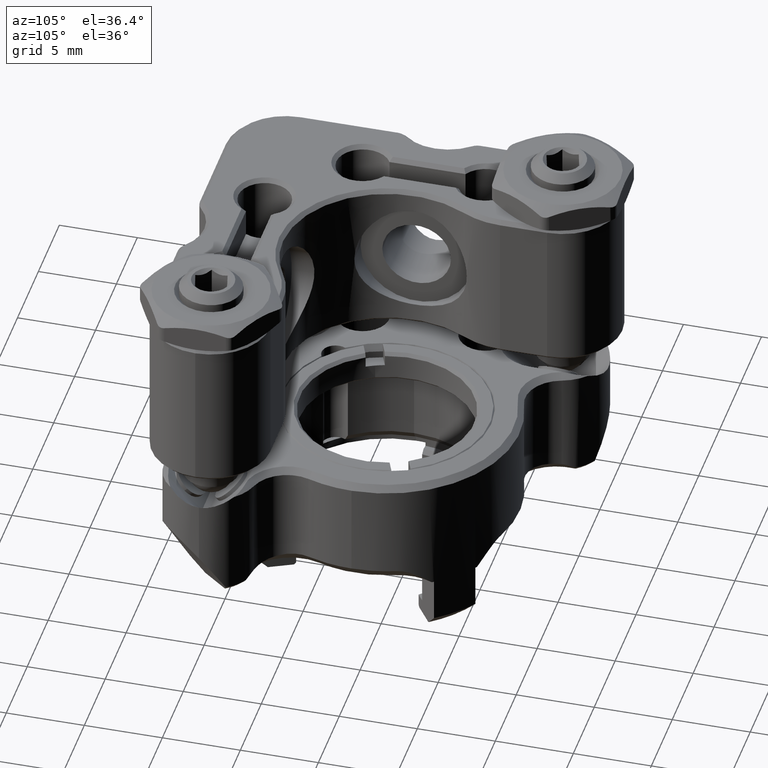
[diagram: clean part render]
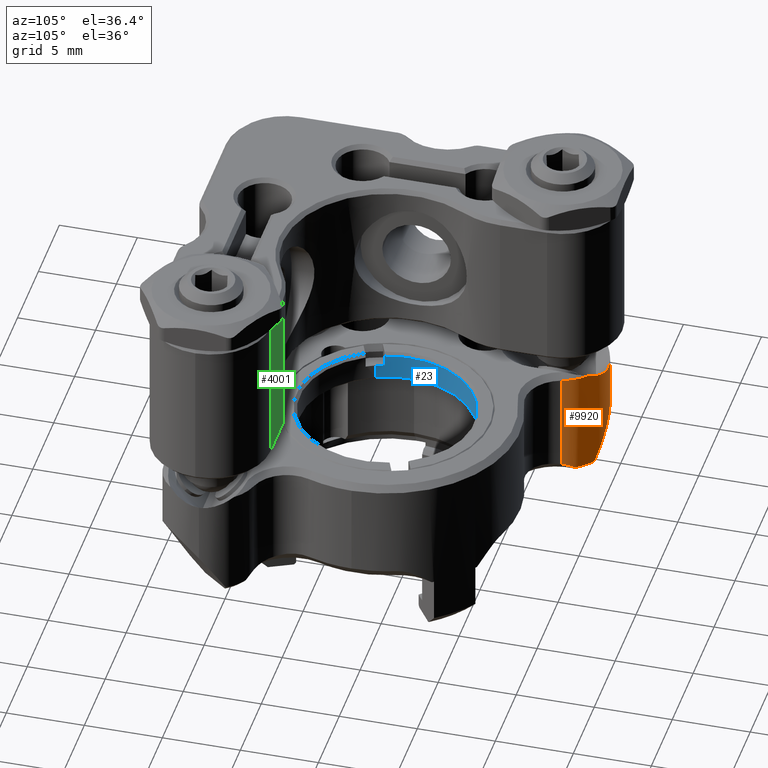
[diagram: same view with three faces highlighted in distinct colors, each labeled with its STEP entity id]
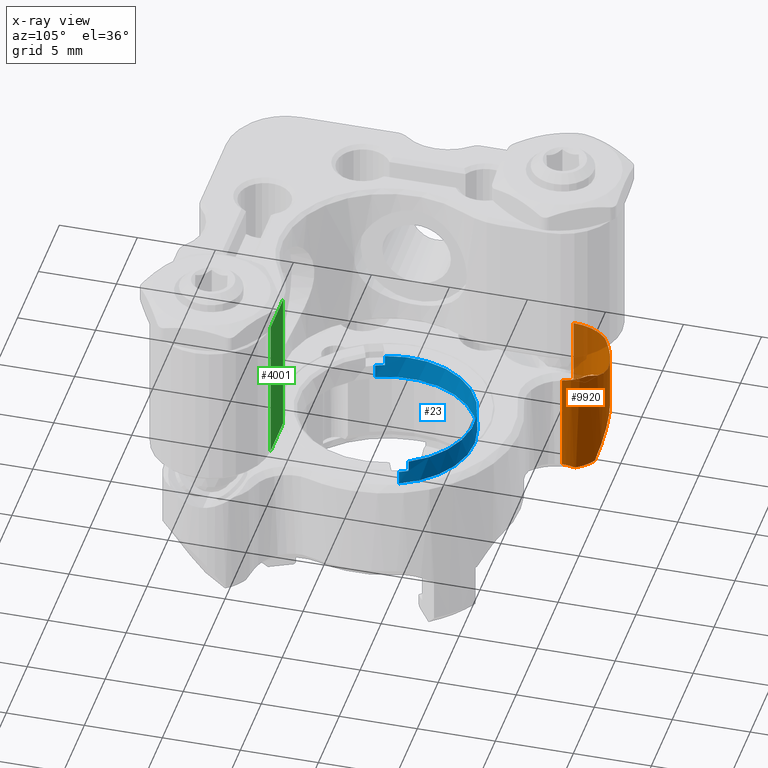
[diagram: x-ray of the same camera — body ghosted, the three highlighted faces saturated]
A machine part, auxiliary view with three faces highlighted in distinct colors.
The next image is the same camera in x-ray (body ghosted, the three faces saturated) — at least one of them is partly hidden behind the body in this view.
Their STEP definitions:

[orange] entity #9920 — the highlighted cylindrical surface (partial cylindrical patch) has radius 3.048 mm, axis along (0, -0, 1).
#151 = AXIS2_PLACEMENT_3D ( 'NONE', #2237, #4629, #10976 ) ;
#158 = CARTESIAN_POINT ( 'NONE',  ( 9.256090186654157392, 12.71449081666983183, -2.039657266794990154 ) ) ;
#191 = CARTESIAN_POINT ( 'NONE',  ( 10.16000000000000192, 10.54099999999999859, -5.295900000000001384 ) ) ;
#232 = CARTESIAN_POINT ( 'NONE',  ( 7.112000000000000099, 10.54099999999999859, -5.295899999999999608 ) ) ;
#399 = DIRECTION ( 'NONE',  ( 1.000000000000000000, 0.000000000000000000, 0.000000000000000000 ) ) ;
#543 = CARTESIAN_POINT ( 'NONE',  ( 4.479178827446347988, 12.07675931491663412, 1.441220846072483797 ) ) ;
#558 = CARTESIAN_POINT ( 'NONE',  ( 9.144162991222710701, 12.81269927083334714, -5.295900000000000496 ) ) ;
#1103 = EDGE_LOOP ( 'NONE', ( #12746, #11370, #10250, #13369, #9049, #5820, #6274, #9447, #14985 ) ) ;
#1214 = EDGE_CURVE ( 'NONE', #6634, #8068, #6855, .T. ) ;
#1324 = CIRCLE ( 'NONE', #2095, 3.048000000000000487 ) ;
#1447 = DIRECTION ( 'NONE',  ( 0.000000000000000000, 0.000000000000000000, -1.000000000000000000 ) ) ;
#1502 = CARTESIAN_POINT ( 'NONE',  ( 9.128879387350837149, 12.83282436234095947, -2.029195959668950611 ) ) ;
#1625 = VERTEX_POINT ( 'NONE', #7692 ) ;
#1956 = LINE ( 'NONE', #4271, #11232 ) ;
#2047 = CARTESIAN_POINT ( 'NONE',  ( 9.595910945436386896, 12.31543638970103238, -1.986586806356193335 ) ) ;
#2095 = AXIS2_PLACEMENT_3D ( 'NONE', #10518, #10277, #15347 ) ;
#2155 = VERTEX_POINT ( 'NONE', #191 ) ;
#2156 = FACE_OUTER_BOUND ( 'NONE', #1103, .T. ) ;
#2237 = CARTESIAN_POINT ( 'NONE',  ( 7.112000000000000099, 10.54099999999999859, 5.676900000000000723 ) ) ;
#2293 = EDGE_CURVE ( 'NONE', #6634, #2155, #1956, .T. ) ;
#2401 = CARTESIAN_POINT ( 'NONE',  ( 5.515399207179144447, 13.13737630330501460, 1.485899999999992671 ) ) ;
#2420 = VECTOR ( 'NONE', #13976, 1000.000000000000000 ) ;
#2481 = CARTESIAN_POINT ( 'NONE',  ( 9.491674998961725507, 12.45367664752075854, -2.018334705647891081 ) ) ;
#2550 = CARTESIAN_POINT ( 'NONE',  ( 5.079837008777296603, 12.81269927083335425, -5.295900000000000496 ) ) ;
#2634 = CARTESIAN_POINT ( 'NONE',  ( 7.594792331482823400, 13.56100185943248349, -1.208275208240807919 ) ) ;
#2640 = CARTESIAN_POINT ( 'NONE',  ( 4.526491895204313387, 12.15595144517803838, 1.485899999999993115 ) ) ;
#2950 = CARTESIAN_POINT ( 'NONE',  ( 8.060474044688550777, 13.44352996119902421, -4.794747423111200391 ) ) ;
#3260 = CARTESIAN_POINT ( 'NONE',  ( 10.16000000000000192, 10.78605520859069600, -1.033828728889621740 ) ) ;
#3390 = CARTESIAN_POINT ( 'NONE',  ( 4.364333481727913799, 11.86641710054839827, 1.300521312545823038 ) ) ;
#3672 = CARTESIAN_POINT ( 'NONE',  ( 7.866421656273372420, 13.50905007931162594, -1.432290773231525982 ) ) ;
#3673 = CARTESIAN_POINT ( 'NONE',  ( 5.210330181719420750, 12.92943276635581284, -5.213741528078031706 ) ) ;
#3823 = CARTESIAN_POINT ( 'NONE',  ( 6.219330067010673702, 13.46215617625769312, 0.3439804373689724915 ) ) ;
#3905 = CARTESIAN_POINT ( 'NONE',  ( 8.872680688337679200, 13.03549465405908414, -5.134360145630054717 ) ) ;
#3955 = EDGE_CURVE ( 'NONE', #1625, #6154, #10636, .T. ) ;
#4271 = CARTESIAN_POINT ( 'NONE',  ( 10.16000000000000192, 10.54099999999999859, 5.676900000000000723 ) ) ;
#4459 = CARTESIAN_POINT ( 'NONE',  ( 9.775617877470786254, 12.03216662005690374, -1.887569380614849690 ) ) ;
#4504 = EDGE_CURVE ( 'NONE', #10863, #14563, #6194, .T. ) ;
#4629 = DIRECTION ( 'NONE',  ( -0.000000000000000000, -0.000000000000000000, -1.000000000000000000 ) ) ;
#5046 = CARTESIAN_POINT ( 'NONE',  ( 5.846597285807752620, 13.32106636364431118, 0.9070547173607736990 ) ) ;
#5552 = EDGE_CURVE ( 'NONE', #6154, #9740, #8278, .T. ) ;
#5632 = CARTESIAN_POINT ( 'NONE',  ( 4.479178827446347988, 12.07675931491663412, 1.441220846072483797 ) ) ;
#5820 = ORIENTED_EDGE ( 'NONE', *, *, #14728, .T. ) ;
#5990 = CYLINDRICAL_SURFACE ( 'NONE', #151, 3.048000000000000487 ) ;
#6004 = CARTESIAN_POINT ( 'NONE',  ( 6.348392437629716056, 13.49796423676393964, -4.743394459548040842 ) ) ;
#6154 = VERTEX_POINT ( 'NONE', #543 ) ;
#6194 = B_SPLINE_CURVE_WITH_KNOTS ( 'NONE', 3,
 ( #2550, #3673, #13315, #11150, #8342, #13245, #6004, #7372, #8489, #14920, #6471, #11299, #2950, #11472, #7519, #3905, #11386, #558 ),
 .UNSPECIFIED., .F., .F.,
 ( 4, 2, 2, 2, 2, 2, 2, 2, 4 ),
 ( 0.0008659730575975457898, 0.001445058583851184780, 0.002024144110104823552, 0.002603229636358462759, 0.003182315162612101532, 0.003761400688865740305, 0.004340486215119379078, 0.004919571741373017851, 0.005498657267626656624 ),
 .UNSPECIFIED. ) ;
#6274 = ORIENTED_EDGE ( 'NONE', *, *, #1214, .F. ) ;
#6325 = DIRECTION ( 'NONE',  ( 1.000000000000000000, 3.414809992080328333E-15, 0.000000000000000000 ) ) ;
#6379 = CARTESIAN_POINT ( 'NONE',  ( 5.674721011632907874, 13.23534874242361248, 1.194013031905927447 ) ) ;
#6471 = CARTESIAN_POINT ( 'NONE',  ( 7.500965241703848818, 13.57022139840228725, -4.673618540135300314 ) ) ;
#6634 = VERTEX_POINT ( 'NONE', #14137 ) ;
#6855 = B_SPLINE_CURVE_WITH_KNOTS ( 'NONE', 3,
 ( #15475, #3260, #8144, #9358, #13047, #14267, #4459, #2047, #2481, #158, #1502, #13633, #11224, #3672, #2634, #14919, #8639, #10022, #3823, #5046, #6379, #12507 ),
 .UNSPECIFIED., .F., .F.,
 ( 4, 2, 2, 2, 2, 2, 2, 2, 2, 2, 4 ),
 ( 2.835787024300444560E-07, 0.001042654588607437594, 0.001563840093559943582, 0.002085025598512449570, 0.002606211103464954690, 0.003127396608417460679, 0.004169767618322471787, 0.005212138628227482896, 0.006254509638132494005, 0.007296880648037505114, 0.008339251657942517090 ),
 .UNSPECIFIED. ) ;
#7372 = CARTESIAN_POINT ( 'NONE',  ( 6.723242763579217574, 13.57012558635994814, -4.673702441311675670 ) ) ;
#7519 = CARTESIAN_POINT ( 'NONE',  ( 8.567837004971149639, 13.22484773792613488, -4.984763283336941520 ) ) ;
#7543 = LINE ( 'NONE', #12457, #2420 ) ;
#7692 = CARTESIAN_POINT ( 'NONE',  ( 4.180894821267488126, 11.37701820028481059, 1.128623068676253061 ) ) ;
#8068 = VERTEX_POINT ( 'NONE', #2401 ) ;
#8144 = CARTESIAN_POINT ( 'NONE',  ( 10.13179191044075544, 11.04404701526821597, -1.265176068952091448 ) ) ;
#8278 = B_SPLINE_CURVE_WITH_KNOTS ( 'NONE', 3,
 ( #15829, #11157, #2640, #15752 ),
 .UNSPECIFIED., .F., .F.,
 ( 4, 4 ),
 ( 2.168404344971008868E-19, 0.0001513365968054843341 ),
 .UNSPECIFIED. ) ;
#8342 = CARTESIAN_POINT ( 'NONE',  ( 5.820854447242975738, 13.30820486889183307, -4.914377646223621277 ) ) ;
#8489 = CARTESIAN_POINT ( 'NONE',  ( 6.919382639108576427, 13.58913988363726588, -4.654410116435893308 ) ) ;
#8639 = CARTESIAN_POINT ( 'NONE',  ( 6.858907259130450740, 13.58658425974752859, -0.4712854989099274361 ) ) ;
#9049 = ORIENTED_EDGE ( 'NONE', *, *, #5552, .T. ) ;
#9172 = EDGE_CURVE ( 'NONE', #1625, #10479, #7543, .T. ) ;
#9327 = CARTESIAN_POINT ( 'NONE',  ( 9.144162991222710701, 12.81269927083334714, -5.295900000000000496 ) ) ;
#9358 = CARTESIAN_POINT ( 'NONE',  ( 10.02198405725209795, 11.45902541196963931, -1.568231161641595595 ) ) ;
#9447 = ORIENTED_EDGE ( 'NONE', *, *, #2293, .T. ) ;
#9542 = EDGE_CURVE ( 'NONE', #10863, #10479, #13725, .T. ) ;
#9576 = CARTESIAN_POINT ( 'NONE',  ( 4.180894821267488126, 11.37701820028481059, 1.128623068676253061 ) ) ;
#9740 = VERTEX_POINT ( 'NONE', #12997 ) ;
#9920 = ADVANCED_FACE ( 'NONE', ( #2156 ), #5990, .T. ) ;
#10022 = CARTESIAN_POINT ( 'NONE',  ( 6.420046379781018331, 13.51771624549075845, 0.06782270103797276295 ) ) ;
#10250 = ORIENTED_EDGE ( 'NONE', *, *, #9172, .F. ) ;
#10277 = DIRECTION ( 'NONE',  ( -0.000000000000000000, -0.000000000000000000, 1.000000000000000000 ) ) ;
#10479 = VERTEX_POINT ( 'NONE', #14727 ) ;
#10518 = CARTESIAN_POINT ( 'NONE',  ( 7.112000000000000099, 10.54099999999999859, -5.295900000000001384 ) ) ;
#10636 = B_SPLINE_CURVE_WITH_KNOTS ( 'NONE', 3,
 ( #9576, #14310, #11822, #3390, #14383, #5632 ),
 .UNSPECIFIED., .F., .F.,
 ( 4, 2, 4 ),
 ( 7.246569962778090063E-07, 0.0004133106520463131683, 0.0008258966470963485188 ),
 .UNSPECIFIED. ) ;
#10863 = VERTEX_POINT ( 'NONE', #13960 ) ;
#10894 = AXIS2_PLACEMENT_3D ( 'NONE', #232, #11477, #399 ) ;
#10976 = DIRECTION ( 'NONE',  ( -1.000000000000000000, 0.000000000000000000, 0.000000000000000000 ) ) ;
#11150 = CARTESIAN_POINT ( 'NONE',  ( 5.659314633050211540, 13.22657276074801302, -4.983346272395371201 ) ) ;
#11157 = CARTESIAN_POINT ( 'NONE',  ( 4.500935708346766262, 12.11405811305966296, 1.468335956939390785 ) ) ;
#11224 = CARTESIAN_POINT ( 'NONE',  ( 8.425089075792339344, 13.30763521046610443, -1.794992544599909534 ) ) ;
#11232 = VECTOR ( 'NONE', #11589, 1000.000000000000000 ) ;
#11299 = CARTESIAN_POINT ( 'NONE',  ( 7.879564147041554278, 13.49706520901830054, -4.744253995408600488 ) ) ;
#11370 = ORIENTED_EDGE ( 'NONE', *, *, #9542, .T. ) ;
#11386 = CARTESIAN_POINT ( 'NONE',  ( 9.013562129803823098, 12.92952909976572506, -5.213673727437622141 ) ) ;
#11472 = CARTESIAN_POINT ( 'NONE',  ( 8.403355553738027339, 13.30807138016636770, -4.914486887358263445 ) ) ;
#11477 = DIRECTION ( 'NONE',  ( -0.000000000000000000, -0.000000000000000000, 1.000000000000000000 ) ) ;
#11589 = DIRECTION ( 'NONE',  ( -0.000000000000000000, -0.000000000000000000, -1.000000000000000000 ) ) ;
#11822 = CARTESIAN_POINT ( 'NONE',  ( 4.263685428348409800, 11.63347695031830931, 1.192055477276146247 ) ) ;
#11898 = EDGE_CURVE ( 'NONE', #2155, #14563, #1324, .T. ) ;
#11917 = CIRCLE ( 'NONE', #12675, 3.048000000000000487 ) ;
#12453 = CARTESIAN_POINT ( 'NONE',  ( 7.112000000000000099, 10.54099999999999859, 1.485899999999993115 ) ) ;
#12457 = CARTESIAN_POINT ( 'NONE',  ( 4.180894821267489014, 11.37701820028481059, 5.676900000000000723 ) ) ;
#12507 = CARTESIAN_POINT ( 'NONE',  ( 5.515399207179144447, 13.13737630330501460, 1.485899999999992671 ) ) ;
#12675 = AXIS2_PLACEMENT_3D ( 'NONE', #12453, #1447, #6325 ) ;
#12746 = ORIENTED_EDGE ( 'NONE', *, *, #4504, .F. ) ;
#12997 = CARTESIAN_POINT ( 'NONE',  ( 4.554313530887662331, 12.19887331413460529, 1.485899999999993115 ) ) ;
#13047 = CARTESIAN_POINT ( 'NONE',  ( 9.973835640014661053, 11.60130908742502953, -1.660914803102438997 ) ) ;
#13245 = CARTESIAN_POINT ( 'NONE',  ( 6.164760230691960885, 13.44396683485433108, -4.794352451968987516 ) ) ;
#13315 = CARTESIAN_POINT ( 'NONE',  ( 5.353811496825346516, 13.03727102213005296, -5.133009918777337255 ) ) ;
#13369 = ORIENTED_EDGE ( 'NONE', *, *, #3955, .T. ) ;
#13633 = CARTESIAN_POINT ( 'NONE',  ( 8.720259555999245293, 13.15320877502127672, -1.937059801287534855 ) ) ;
#13725 = CIRCLE ( 'NONE', #10894, 3.048000000000000487 ) ;
#13960 = CARTESIAN_POINT ( 'NONE',  ( 5.079837008777296603, 12.81269927083335425, -5.295900000000000496 ) ) ;
#13976 = DIRECTION ( 'NONE',  ( -0.000000000000000000, -0.000000000000000000, -1.000000000000000000 ) ) ;
#14137 = CARTESIAN_POINT ( 'NONE',  ( 10.16000000000000192, 10.54099999999999859, -0.7826677846635562430 ) ) ;
#14267 = CARTESIAN_POINT ( 'NONE',  ( 9.851426542691097410, 11.88632553998418295, -1.819822209585920669 ) ) ;
#14310 = CARTESIAN_POINT ( 'NONE',  ( 4.218863974727851129, 11.51013920447089944, 1.150673128801372069 ) ) ;
#14383 = CARTESIAN_POINT ( 'NONE',  ( 4.420438276781758269, 11.97605775056663369, 1.368013820169111439 ) ) ;
#14563 = VERTEX_POINT ( 'NONE', #9327 ) ;
#14727 = CARTESIAN_POINT ( 'NONE',  ( 4.180894821267489014, 11.37701820028481059, -5.295899999999999608 ) ) ;
#14728 = EDGE_CURVE ( 'NONE', #9740, #8068, #11917, .T. ) ;
#14919 = CARTESIAN_POINT ( 'NONE',  ( 7.093477612588325876, 13.59929308397328640, -0.7297451213712080609 ) ) ;
#14920 = CARTESIAN_POINT ( 'NONE',  ( 7.309019280848411348, 13.58885852704992736, -4.654691472876523406 ) ) ;
#14985 = ORIENTED_EDGE ( 'NONE', *, *, #11898, .T. ) ;
#15347 = DIRECTION ( 'NONE',  ( 1.000000000000000000, 0.000000000000000000, 0.000000000000000000 ) ) ;
#15475 = CARTESIAN_POINT ( 'NONE',  ( 10.16000000000000192, 10.54099999999999859, -0.7826677846635562430 ) ) ;
#15752 = CARTESIAN_POINT ( 'NONE',  ( 4.554313530887662331, 12.19887331413460529, 1.485899999999993115 ) ) ;
#15829 = CARTESIAN_POINT ( 'NONE',  ( 4.479178827446347988, 12.07675931491663412, 1.441220846072483797 ) ) ;

[blue] entity #23 — the highlighted cylindrical surface (partial cylindrical patch) has radius 5.595 mm, axis along (0, 0, 1).
#23 = ADVANCED_FACE ( 'NONE', ( #9509 ), #8299, .F. ) ;
#90 = VERTEX_POINT ( 'NONE', #13676 ) ;
#332 = DIRECTION ( 'NONE',  ( -1.000000000000000000, 0.000000000000000000, 0.000000000000000000 ) ) ;
#345 = CARTESIAN_POINT ( 'NONE',  ( 5.595000000000002416, 6.851898841229444634E-16, -0.1000000000000000472 ) ) ;
#419 = CARTESIAN_POINT ( 'NONE',  ( 0.000000000000000000, 0.000000000000000000, -0.1000000000000000472 ) ) ;
#594 = VERTEX_POINT ( 'NONE', #2346 ) ;
#787 = EDGE_CURVE ( 'NONE', #6591, #12232, #1108, .T. ) ;
#867 = CARTESIAN_POINT ( 'NONE',  ( 5.562735388277967985, 0.5999999999999998668, 1.000000000000000000 ) ) ;
#1108 = LINE ( 'NONE', #867, #8327 ) ;
#1372 = EDGE_CURVE ( 'NONE', #6591, #13226, #3725, .T. ) ;
#1608 = DIRECTION ( 'NONE',  ( 0.000000000000000000, 0.000000000000000000, -1.000000000000000000 ) ) ;
#2216 = CARTESIAN_POINT ( 'NONE',  ( 0.000000000000000000, 0.000000000000000000, 1.000000000000000000 ) ) ;
#2346 = CARTESIAN_POINT ( 'NONE',  ( -5.562735388277967097, 0.5999999999999996447, -0.1000000000000000472 ) ) ;
#2658 = VECTOR ( 'NONE', #15630, 1000.000000000000000 ) ;
#2861 = DIRECTION ( 'NONE',  ( -0.000000000000000000, -0.000000000000000000, -1.000000000000000000 ) ) ;
#3124 = AXIS2_PLACEMENT_3D ( 'NONE', #2216, #15705, #4693 ) ;
#3509 = DIRECTION ( 'NONE',  ( -0.000000000000000000, -0.000000000000000000, -1.000000000000000000 ) ) ;
#3725 = CIRCLE ( 'NONE', #12744, 5.595000000000002416 ) ;
#3746 = CARTESIAN_POINT ( 'NONE',  ( 5.562735388277967985, 0.5999999999999998668, -0.8000000000000017097 ) ) ;
#3868 = VERTEX_POINT ( 'NONE', #11343 ) ;
#3886 = AXIS2_PLACEMENT_3D ( 'NONE', #7492, #7347, #12482 ) ;
#3946 = VERTEX_POINT ( 'NONE', #6840 ) ;
#4048 = ORIENTED_EDGE ( 'NONE', *, *, #9159, .F. ) ;
#4135 = CARTESIAN_POINT ( 'NONE',  ( 0.000000000000000000, 0.000000000000000000, -0.8000000000000012657 ) ) ;
#4693 = DIRECTION ( 'NONE',  ( -1.000000000000000000, 0.000000000000000000, 0.000000000000000000 ) ) ;
#4790 = LINE ( 'NONE', #13136, #2658 ) ;
#4860 = ORIENTED_EDGE ( 'NONE', *, *, #7801, .T. ) ;
#5168 = AXIS2_PLACEMENT_3D ( 'NONE', #4135, #2861, #6714 ) ;
#5480 = CIRCLE ( 'NONE', #12657, 5.595000000000002416 ) ;
#5515 = CARTESIAN_POINT ( 'NONE',  ( -5.562735388277967985, 0.5999999999999998668, 1.000000000000000000 ) ) ;
#6326 = DIRECTION ( 'NONE',  ( -1.000000000000000000, 0.000000000000000000, 0.000000000000000000 ) ) ;
#6435 = CIRCLE ( 'NONE', #5168, 5.595000000000002416 ) ;
#6591 = VERTEX_POINT ( 'NONE', #9229 ) ;
#6714 = DIRECTION ( 'NONE',  ( 1.000000000000000000, 0.000000000000000000, 0.000000000000000000 ) ) ;
#6770 = VECTOR ( 'NONE', #10285, 1000.000000000000000 ) ;
#6840 = CARTESIAN_POINT ( 'NONE',  ( -5.562735388277970650, 0.5999999999999998668, -0.8000000000000028200 ) ) ;
#6864 = LINE ( 'NONE', #5515, #8219 ) ;
#7347 = DIRECTION ( 'NONE',  ( 0.000000000000000000, 0.000000000000000000, 1.000000000000000000 ) ) ;
#7490 = ORIENTED_EDGE ( 'NONE', *, *, #787, .F. ) ;
#7492 = CARTESIAN_POINT ( 'NONE',  ( 0.000000000000000000, 0.000000000000000000, 0.7999999999999942712 ) ) ;
#7801 = EDGE_CURVE ( 'NONE', #90, #594, #5480, .T. ) ;
#8001 = CIRCLE ( 'NONE', #3886, 5.595000000000002416 ) ;
#8219 = VECTOR ( 'NONE', #10490, 1000.000000000000000 ) ;
#8299 = CYLINDRICAL_SURFACE ( 'NONE', #3124, 5.595000000000002416 ) ;
#8327 = VECTOR ( 'NONE', #3509, 1000.000000000000000 ) ;
#8642 = EDGE_LOOP ( 'NONE', ( #4048, #14840, #15706, #4860, #14242, #9115, #7490, #8768 ) ) ;
#8768 = ORIENTED_EDGE ( 'NONE', *, *, #1372, .T. ) ;
#9115 = ORIENTED_EDGE ( 'NONE', *, *, #12318, .T. ) ;
#9159 = EDGE_CURVE ( 'NONE', #9448, #13226, #10046, .T. ) ;
#9229 = CARTESIAN_POINT ( 'NONE',  ( 5.562735388277967097, 0.5999999999999996447, -0.1000000000000000472 ) ) ;
#9448 = VERTEX_POINT ( 'NONE', #12279 ) ;
#9509 = FACE_OUTER_BOUND ( 'NONE', #8642, .T. ) ;
#10046 = LINE ( 'NONE', #10372, #6770 ) ;
#10175 = EDGE_CURVE ( 'NONE', #3946, #594, #6864, .T. ) ;
#10285 = DIRECTION ( 'NONE',  ( -0.000000000000000000, -0.000000000000000000, -1.000000000000000000 ) ) ;
#10372 = CARTESIAN_POINT ( 'NONE',  ( 5.595000000000002416, 6.851898841229444634E-16, 1.000000000000000000 ) ) ;
#10490 = DIRECTION ( 'NONE',  ( 0.000000000000000000, 0.000000000000000000, 1.000000000000000000 ) ) ;
#11343 = CARTESIAN_POINT ( 'NONE',  ( -5.595000000000002416, 0.000000000000000000, 0.7999999999999942712 ) ) ;
#12232 = VERTEX_POINT ( 'NONE', #3746 ) ;
#12279 = CARTESIAN_POINT ( 'NONE',  ( 5.595000000000002416, 6.851898841229444634E-16, 0.7999999999999942712 ) ) ;
#12318 = EDGE_CURVE ( 'NONE', #3946, #12232, #6435, .T. ) ;
#12371 = CARTESIAN_POINT ( 'NONE',  ( 0.000000000000000000, 0.000000000000000000, -0.1000000000000000472 ) ) ;
#12482 = DIRECTION ( 'NONE',  ( 1.000000000000000000, 0.000000000000000000, 0.000000000000000000 ) ) ;
#12657 = AXIS2_PLACEMENT_3D ( 'NONE', #419, #1608, #332 ) ;
#12701 = EDGE_CURVE ( 'NONE', #9448, #3868, #8001, .T. ) ;
#12744 = AXIS2_PLACEMENT_3D ( 'NONE', #12371, #14788, #6326 ) ;
#13136 = CARTESIAN_POINT ( 'NONE',  ( -5.595000000000002416, 0.000000000000000000, 1.000000000000000000 ) ) ;
#13226 = VERTEX_POINT ( 'NONE', #345 ) ;
#13676 = CARTESIAN_POINT ( 'NONE',  ( -5.595000000000002416, 0.000000000000000000, -0.1000000000000000472 ) ) ;
#13787 = EDGE_CURVE ( 'NONE', #3868, #90, #4790, .T. ) ;
#14242 = ORIENTED_EDGE ( 'NONE', *, *, #10175, .F. ) ;
#14788 = DIRECTION ( 'NONE',  ( 0.000000000000000000, 0.000000000000000000, -1.000000000000000000 ) ) ;
#14840 = ORIENTED_EDGE ( 'NONE', *, *, #12701, .T. ) ;
#15630 = DIRECTION ( 'NONE',  ( -0.000000000000000000, -0.000000000000000000, -1.000000000000000000 ) ) ;
#15705 = DIRECTION ( 'NONE',  ( -0.000000000000000000, -0.000000000000000000, -1.000000000000000000 ) ) ;
#15706 = ORIENTED_EDGE ( 'NONE', *, *, #13787, .T. ) ;

[green] entity #4001 — the highlighted planar face has unit normal (-0, -1, 0).
#924 = DIRECTION ( 'NONE',  ( 0.000000000000000000, -1.000000000000000000, 1.035325214890563892E-16 ) ) ;
#2190 = VECTOR ( 'NONE', #10750, 1000.000000000000000 ) ;
#2267 = DIRECTION ( 'NONE',  ( 0.000000000000000000, 1.000000000000000000, -1.035325214890563892E-16 ) ) ;
#3396 = ORIENTED_EDGE ( 'NONE', *, *, #3620, .T. ) ;
#3532 = CARTESIAN_POINT ( 'NONE',  ( 4.749999999999992895, 5.880688735173795756, -5.080000000000000071 ) ) ;
#3620 = EDGE_CURVE ( 'NONE', #10965, #14075, #11925, .T. ) ;
#4001 = ADVANCED_FACE ( 'NONE', ( #8122 ), #6988, .F. ) ;
#4433 = DIRECTION ( 'NONE',  ( 0.000000000000000000, -1.035325214890563892E-16, -1.000000000000000000 ) ) ;
#4593 = LINE ( 'NONE', #12063, #12594 ) ;
#4784 = VECTOR ( 'NONE', #924, 1000.000000000000000 ) ;
#5523 = VECTOR ( 'NONE', #13758, 1000.000000000000000 ) ;
#5746 = ORIENTED_EDGE ( 'NONE', *, *, #10837, .T. ) ;
#5833 = CARTESIAN_POINT ( 'NONE',  ( -5.000000000000000000, 5.880688735173795756, -5.080000000000000071 ) ) ;
#5979 = EDGE_CURVE ( 'NONE', #14075, #14668, #11956, .T. ) ;
#6134 = ORIENTED_EDGE ( 'NONE', *, *, #15378, .T. ) ;
#6609 = CARTESIAN_POINT ( 'NONE',  ( -4.749999999999996447, 5.880688735173795756, -5.080000000000000071 ) ) ;
#6988 = PLANE ( 'NONE',  #13491 ) ;
#8043 = CARTESIAN_POINT ( 'NONE',  ( -5.000000000000000000, 12.69999999999999574, -5.080000000000000959 ) ) ;
#8122 = FACE_OUTER_BOUND ( 'NONE', #12245, .T. ) ;
#8921 = CARTESIAN_POINT ( 'NONE',  ( -5.000000000000000000, 8.889999999999995239, -5.080000000000000959 ) ) ;
#9592 = CARTESIAN_POINT ( 'NONE',  ( -4.749999999999996447, 12.69999999999999574, -5.080000000000000959 ) ) ;
#10206 = CARTESIAN_POINT ( 'NONE',  ( 4.749999999999992895, 8.889999999999995239, -5.080000000000000959 ) ) ;
#10750 = DIRECTION ( 'NONE',  ( 1.000000000000000000, 0.000000000000000000, 0.000000000000000000 ) ) ;
#10837 = EDGE_CURVE ( 'NONE', #14668, #14824, #4593, .T. ) ;
#10965 = VERTEX_POINT ( 'NONE', #12231 ) ;
#11803 = ORIENTED_EDGE ( 'NONE', *, *, #5979, .T. ) ;
#11925 = LINE ( 'NONE', #9592, #4784 ) ;
#11956 = LINE ( 'NONE', #5833, #2190 ) ;
#12063 = CARTESIAN_POINT ( 'NONE',  ( 4.749999999999992895, 8.889999999999995239, -5.080000000000000959 ) ) ;
#12231 = CARTESIAN_POINT ( 'NONE',  ( -4.749999999999996447, 8.889999999999995239, -5.080000000000000959 ) ) ;
#12245 = EDGE_LOOP ( 'NONE', ( #6134, #3396, #11803, #5746 ) ) ;
#12543 = LINE ( 'NONE', #8921, #5523 ) ;
#12594 = VECTOR ( 'NONE', #14396, 1000.000000000000000 ) ;
#13491 = AXIS2_PLACEMENT_3D ( 'NONE', #8043, #4433, #2267 ) ;
#13758 = DIRECTION ( 'NONE',  ( -1.000000000000000000, -0.000000000000000000, -0.000000000000000000 ) ) ;
#14075 = VERTEX_POINT ( 'NONE', #6609 ) ;
#14396 = DIRECTION ( 'NONE',  ( 0.000000000000000000, 1.000000000000000000, -1.035325214890563892E-16 ) ) ;
#14668 = VERTEX_POINT ( 'NONE', #3532 ) ;
#14824 = VERTEX_POINT ( 'NONE', #10206 ) ;
#15378 = EDGE_CURVE ( 'NONE', #14824, #10965, #12543, .T. ) ;